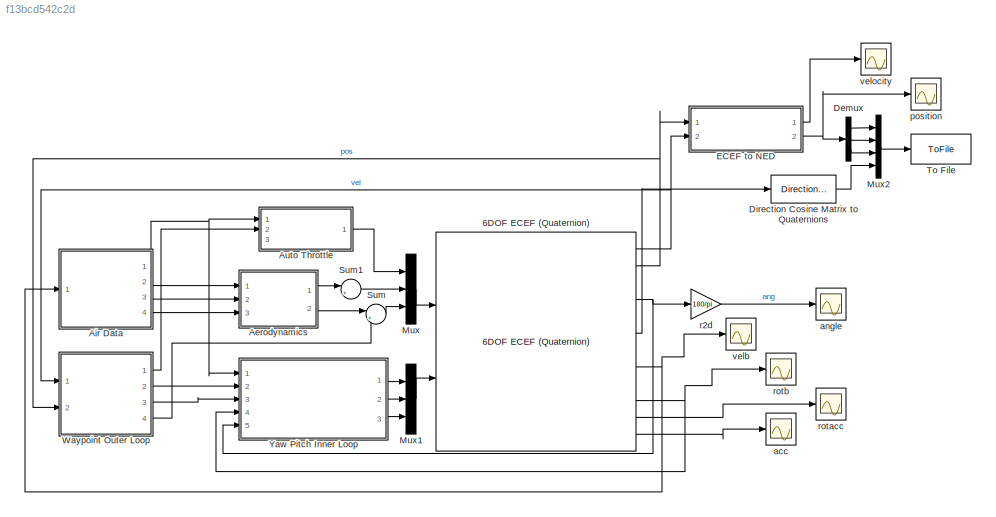
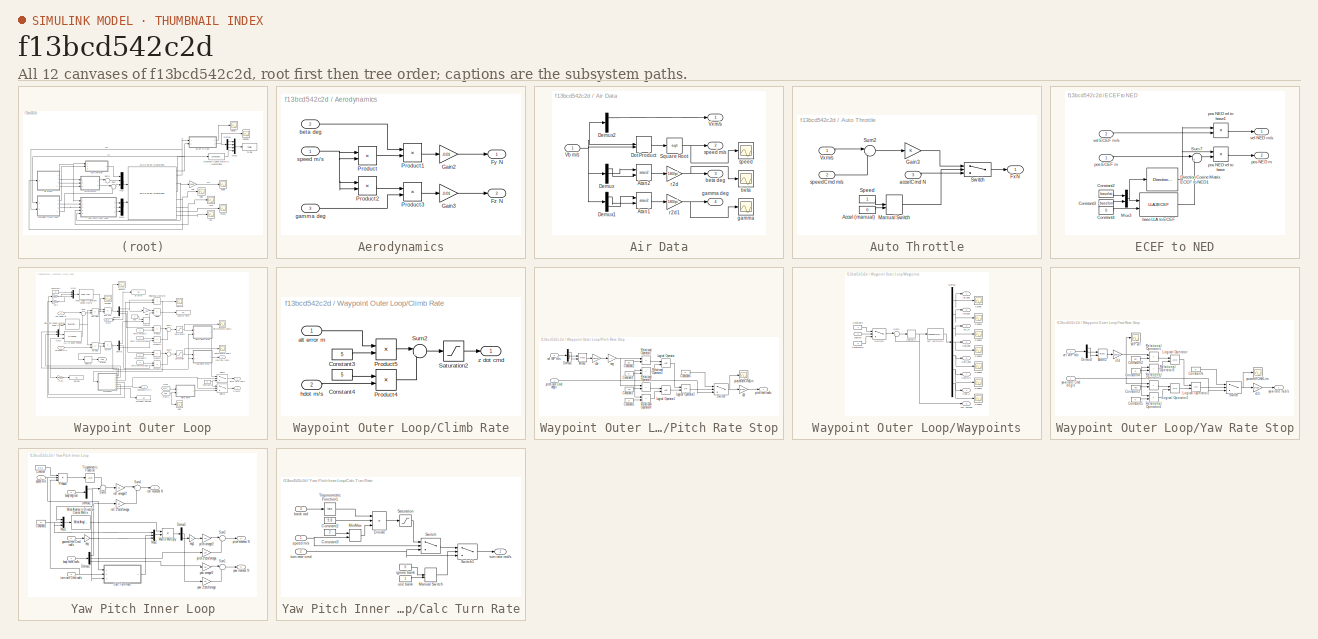
[diagram: thumbnail index - all 12 canvases of the model, root first then tree order]
MODEL slx_f13bcd542c2d
KIND model
CONFIG AbsTol = auto
CONFIG EnableMultiTasking = off
CONFIG FixedStep = 0.001
CONFIG MaxStep = auto
CONFIG MinStep = auto
CONFIG RelTol = 1e-3
CONFIG SampleTimeConstraint = Unconstrained
CONFIG SolverName = FixedStepAuto
CONFIG StartTime = 0.0
CONFIG StopTime = 600
BLOCK [Reference] 6DOF ECEF (Quaternion)  REF=aerolib6dof2/6DOF ECEF (Quaternion)
  Ports = [2, 12]
  SourceBlock = aerolib6dof2/6DOF ECEF (Quaternion)
  SourceProductBaseCode = AE
  SourceType = 6DOF EoM (ECEF)
BLOCK [SubSystem] Aerodynamics
  Ports = [3, 2]
  RequestExecContextInheritance = off
BLOCK [Outport] Aerodynamics/Fy N
BLOCK [Outport] Aerodynamics/Fz N
  Port = 2
BLOCK [Gain] Aerodynamics/Gain2
  Gain = -0.01
BLOCK [Gain] Aerodynamics/Gain3
  Gain = -0.01
BLOCK [Product] Aerodynamics/Product
  Ports = [2, 1]
BLOCK [Product] Aerodynamics/Product1
  Ports = [2, 1]
BLOCK [Product] Aerodynamics/Product2
  Ports = [2, 1]
BLOCK [Product] Aerodynamics/Product3
  Ports = [2, 1]
BLOCK [Inport] Aerodynamics/beta deg
  Port = 2
BLOCK [Inport] Aerodynamics/gamma deg
  Port = 3
BLOCK [Inport] Aerodynamics/speed m//s
BLOCK [SubSystem] Air Data
  NameLocation = top
  Ports = [1, 4]
  RequestExecContextInheritance = off
BLOCK [Trigonometry] Air Data/Atan1
  Operator = atan2
  Ports = [2, 1]
BLOCK [Trigonometry] Air Data/Atan2
  Operator = atan2
  Ports = [2, 1]
BLOCK [Demux] Air Data/Demux
  Outputs = 3
  Ports = [1, 3]
BLOCK [Demux] Air Data/Demux1
  Outputs = 3
  Ports = [1, 3]
BLOCK [Demux] Air Data/Demux2
  Outputs = 3
  Ports = [1, 3]
BLOCK [DotProduct] Air Data/Dot Product
  OutDataTypeStr = Inherit: Inherit via internal rule
BLOCK [Sqrt] Air Data/Square Root
BLOCK [Inport] Air Data/Vb m//s
BLOCK [Outport] Air Data/Vx m//s
BLOCK [Scope] Air Data/beta
  Floating = off
  NumInputPorts = 1
  Ports = [1]
  ScopeSpecificationString = Simulink.scopes.TimeScopeBlockCfg('CurrentConfiguration', extmgr.ConfigurationSet(extmgr.Configuration('Core','General UI',true),extmgr.Configuration('Core','Source UI',true),extmgr.Configuration('Sources','WiredSimulink',true,'DataLoggingVariableName','ScopeData8'),extmgr.Configuration('Visuals','Time Domain',true,'SerializedDisplays',{struct('MinYLimReal','-0.12109','MaxYLimReal','0.03994','YLab...<+1388ch>
BLOCK [Outport] Air Data/beta deg
  Port = 3
BLOCK [Scope] Air Data/gamma
  Floating = off
  NumInputPorts = 1
  Ports = [1]
  ScopeSpecificationString = Simulink.scopes.TimeScopeBlockCfg('CurrentConfiguration', extmgr.ConfigurationSet(extmgr.Configuration('Core','General UI',true),extmgr.Configuration('Core','Source UI',true),extmgr.Configuration('Sources','WiredSimulink',true,'DataLoggingVariableName','ScopeData9'),extmgr.Configuration('Visuals','Time Domain',true,'SerializedDisplays',{struct('MinYLimReal','-1.00000','MaxYLimReal','1.00000','YLab...<+1389ch>
BLOCK [Outport] Air Data/gamma deg
  Port = 4
BLOCK [Gain] Air Data/r2d
  Gain = 180/pi
BLOCK [Gain] Air Data/r2d1
  Gain = 180/pi
BLOCK [Scope] Air Data/speed
  Floating = off
  NumInputPorts = 1
  Ports = [1]
  ScopeSpecificationString = Simulink.scopes.TimeScopeBlockCfg('CurrentConfiguration', extmgr.ConfigurationSet(extmgr.Configuration('Core','General UI',true),extmgr.Configuration('Core','Source UI',true),extmgr.Configuration('Sources','WiredSimulink',true,'DataLoggingVariableName','ScopeData7'),extmgr.Configuration('Visuals','Time Domain',true,'SerializedDisplays',{struct('MinYLimReal','-12.5','MaxYLimReal','112.5','YLabelRea...<+1382ch>
BLOCK [Outport] Air Data/speed m//s
  Port = 2
BLOCK [SubSystem] Auto Throttle
  Ports = [3, 1]
  RequestExecContextInheritance = off
BLOCK [Constant] Auto Throttle/Accel (manual)
  Value = 0
BLOCK [Outport] Auto Throttle/Fx N
BLOCK [Gain] Auto Throttle/Gain3
BLOCK [ManualSwitch] Auto Throttle/Manual Switch
BLOCK [Constant] Auto Throttle/Speed
  NameLocation = top
BLOCK [Sum] Auto Throttle/Sum2
  Inputs = |-+
  Ports = [2, 1]
BLOCK [Switch] Auto Throttle/Switch
  Criteria = u2 > Threshold
  InputSameDT = off
  SaturateOnIntegerOverflow = off
BLOCK [Inport] Auto Throttle/Vx m//s
BLOCK [Inport] Auto Throttle/accelCmd N
  Port = 3
BLOCK [Inport] Auto Throttle/speedCmd m//s
  Port = 2
BLOCK [Demux] Demux
  Outputs = 3
  Ports = [1, 3]
BLOCK [Reference] Direction Cosine Matrix to Quaternions  REF=sharedtransform/Direction Cosine Matrix 
to Quaternions
  Ports = [1, 1]
  SourceBlock = sharedtransform/Direction Cosine Matrix \nto Quaternions
  SourceProductBaseCode = AE,PW,DR,MT,VE
  SourceType = DCM2Quaternion
BLOCK [SubSystem] ECEF to NED
  Ports = [2, 2]
  RequestExecContextInheritance = off
BLOCK [Constant] ECEF to NED/Constant2
  Value = baselat
BLOCK [Constant] ECEF to NED/Constant3
  Value = baselon
BLOCK [Constant] ECEF to NED/Constant4
  Value = 0
BLOCK [Reference] ECEF to NED/Direction Cosine Matrix ECEF to NED1  REF=aerolibtransform2/Direction Cosine Matrix
ECEF to NED
  Ports = [1, 1]
  SourceBlock = aerolibtransform2/Direction Cosine Matrix\nECEF to NED
  SourceProductBaseCode = AE
  SourceType = DCM ECEF to NED
BLOCK [Mux] ECEF to NED/Mux3
  DisplayOption = bar
  Inputs = 2
  Ports = [2, 1]
BLOCK [Sum] ECEF to NED/Sum7
  Inputs = |+-
  Ports = [2, 1]
BLOCK [LLA2ECEF] ECEF to NED/base LLA to ECEF
  Ports = [2, 1]
BLOCK [Inport] ECEF to NED/pos ECEF m
BLOCK [Outport] ECEF to NED/pos NED m
  Port = 2
BLOCK [Product] ECEF to NED/pos NED rel to base
  Multiplication = Matrix(*)
  Ports = [2, 1]
BLOCK [Product] ECEF to NED/pos NED rel to base1
  Multiplication = Matrix(*)
  Ports = [2, 1]
BLOCK [Inport] ECEF to NED/vel ECEF m//s
  Port = 2
BLOCK [Outport] ECEF to NED/vel NED m//s
BLOCK [Mux] Mux
  DisplayOption = bar
  Inputs = 3
  Ports = [3, 1]
BLOCK [Mux] Mux1
  DisplayOption = bar
  Inputs = 3
  Ports = [3, 1]
BLOCK [Mux] Mux2
  DisplayOption = bar
  Ports = [4, 1]
BLOCK [Sum] Sum
  Inputs = |++
  Ports = [2, 1]
BLOCK [Sum] Sum1
  Inputs = |++
  Ports = [2, 1]
BLOCK [ToFile] To File
  Filename = xyzquat.mat
  MatrixName = traj
  Ports = [1]
  SampleTime = 0.1
  SaveFormat = Timeseries
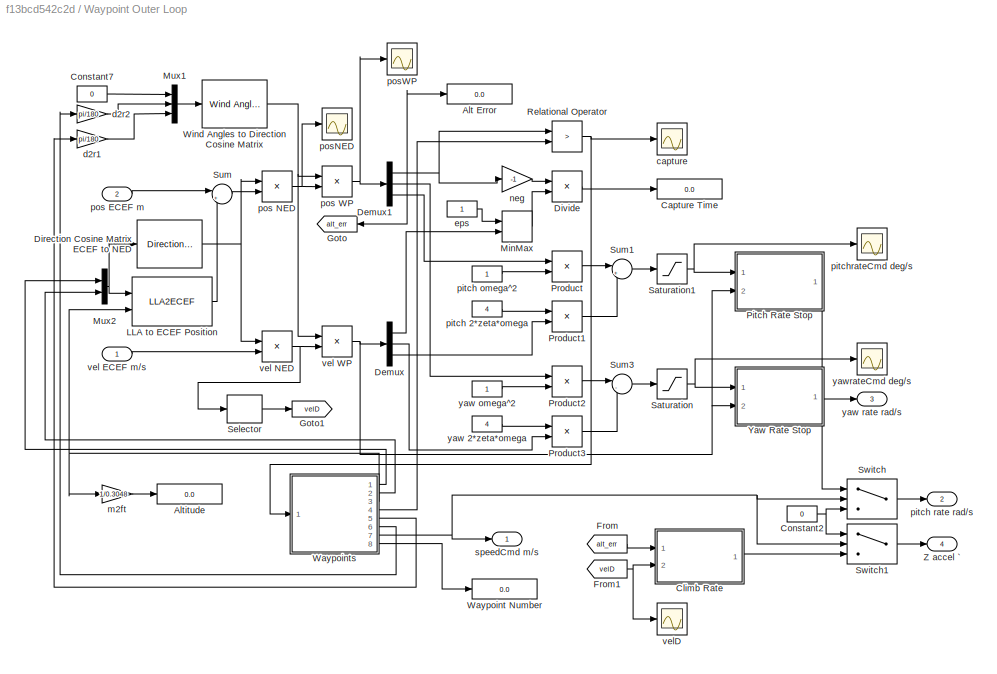
BLOCK [SubSystem] Waypoint Outer Loop
  Ports = [2, 4]
  RequestExecContextInheritance = off
BLOCK [Display] Waypoint Outer Loop/Alt Error
  Decimation = 1
  Ports = [1]
BLOCK [Display] Waypoint Outer Loop/Altitude
  Decimation = 1
  Ports = [1]
BLOCK [Display] Waypoint Outer Loop/Capture Time
  Decimation = 1
  Ports = [1]
BLOCK [SubSystem] Waypoint Outer Loop/Climb Rate
  Ports = [2, 1]
  RequestExecContextInheritance = off
BLOCK [Constant] Waypoint Outer Loop/Climb Rate/Constant3
  Value = 5
BLOCK [Constant] Waypoint Outer Loop/Climb Rate/Constant4
  Value = 5
BLOCK [Product] Waypoint Outer Loop/Climb Rate/Product4
  Ports = [2, 1]
BLOCK [Product] Waypoint Outer Loop/Climb Rate/Product5
  Ports = [2, 1]
BLOCK [Saturate] Waypoint Outer Loop/Climb Rate/Saturation2
  LowerLimit = -50
  UpperLimit = 50
BLOCK [Sum] Waypoint Outer Loop/Climb Rate/Sum2
  Inputs = |--
  Ports = [2, 1]
BLOCK [Inport] Waypoint Outer Loop/Climb Rate/alt error m
BLOCK [Inport] Waypoint Outer Loop/Climb Rate/hdot m//s
  Port = 2
BLOCK [Outport] Waypoint Outer Loop/Climb Rate/z dot cmd
BLOCK [Constant] Waypoint Outer Loop/Constant2
  Value = 0
BLOCK [Constant] Waypoint Outer Loop/Constant7
  Value = 0
BLOCK [Demux] Waypoint Outer Loop/Demux
  Outputs = 3
  Ports = [1, 3]
BLOCK [Demux] Waypoint Outer Loop/Demux1
  Outputs = 3
  Ports = [1, 3]
BLOCK [Reference] Waypoint Outer Loop/Direction Cosine Matrix ECEF to NED  REF=aerolibtransform2/Direction Cosine Matrix
ECEF to NED
  Ports = [1, 1]
  SourceBlock = aerolibtransform2/Direction Cosine Matrix\nECEF to NED
  SourceProductBaseCode = AE
  SourceType = DCM ECEF to NED
BLOCK [Product] Waypoint Outer Loop/Divide
  Inputs = */
  Ports = [2, 1]
BLOCK [From] Waypoint Outer Loop/From
  GotoTag = alt_err
BLOCK [From] Waypoint Outer Loop/From1
  GotoTag = velD
BLOCK [Goto] Waypoint Outer Loop/Goto
  GotoTag = alt_err
BLOCK [Goto] Waypoint Outer Loop/Goto1
  GotoTag = velD
BLOCK [LLA2ECEF] Waypoint Outer Loop/LLA to ECEF Position
  Ports = [2, 1]
BLOCK [MinMax] Waypoint Outer Loop/MinMax
  Function = max
  Inputs = 2
  Ports = [2, 1]
BLOCK [Mux] Waypoint Outer Loop/Mux1
  DisplayOption = bar
  Inputs = 3
  Ports = [3, 1]
BLOCK [Mux] Waypoint Outer Loop/Mux2
  DisplayOption = bar
  Inputs = 2
  Ports = [2, 1]
BLOCK [SubSystem] Waypoint Outer Loop/Pitch Rate Stop
  Ports = [2, 1]
  RequestExecContextInheritance = off
BLOCK [Trigonometry] Waypoint Outer Loop/Pitch Rate Stop/Atan2
  Operator = atan2
  Ports = [2, 1]
BLOCK [Constant] Waypoint Outer Loop/Pitch Rate Stop/Constant2
  Value = 30
BLOCK [Constant] Waypoint Outer Loop/Pitch Rate Stop/Constant3
  Value = -30
BLOCK [Constant] Waypoint Outer Loop/Pitch Rate Stop/Constant4
  Value = 0
BLOCK [Constant] Waypoint Outer Loop/Pitch Rate Stop/Constant5
  Value = 0
BLOCK [Constant] Waypoint Outer Loop/Pitch Rate Stop/Constant6
  Value = 0
BLOCK [Demux] Waypoint Outer Loop/Pitch Rate Stop/Demux2
  Outputs = 3
  Ports = [1, 3]
BLOCK [Logic] Waypoint Outer Loop/Pitch Rate Stop/Logical Operator
  AllPortsSameDT = off
  OutDataTypeStr = boolean
  Ports = [2, 1]
BLOCK [Logic] Waypoint Outer Loop/Pitch Rate Stop/Logical Operator1
  AllPortsSameDT = off
  OutDataTypeStr = boolean
  Ports = [2, 1]
BLOCK [Logic] Waypoint Outer Loop/Pitch Rate Stop/Logical Operator2
  AllPortsSameDT = off
  Operator = OR
  OutDataTypeStr = boolean
  Ports = [2, 1]
BLOCK [RelationalOperator] Waypoint Outer Loop/Pitch Rate Stop/Relational Operator1
  InputSameDT = off
  Operator = >
  OutDataTypeStr = boolean
  Ports = [2, 1]
  RndMeth = Simplest
BLOCK [RelationalOperator] Waypoint Outer Loop/Pitch Rate Stop/Relational Operator2
  InputSameDT = off
  Operator = <
  OutDataTypeStr = boolean
  Ports = [2, 1]
  RndMeth = Simplest
BLOCK [RelationalOperator] Waypoint Outer Loop/Pitch Rate Stop/Relational Operator3
  InputSameDT = off
  Operator = >
  OutDataTypeStr = boolean
  Ports = [2, 1]
  RndMeth = Simplest
BLOCK [RelationalOperator] Waypoint Outer Loop/Pitch Rate Stop/Relational Operator4
  InputSameDT = off
  Operator = <
  OutDataTypeStr = boolean
  Ports = [2, 1]
  RndMeth = Simplest
BLOCK [Switch] Waypoint Outer Loop/Pitch Rate Stop/Switch
  Criteria = u2 ~= 0
  InputSameDT = off
  SaturateOnIntegerOverflow = off
BLOCK [Gain] Waypoint Outer Loop/Pitch Rate Stop/d2r
  Gain = pi/180
BLOCK [Gain] Waypoint Outer Loop/Pitch Rate Stop/neg
  Gain = -1
BLOCK [Scope] Waypoint Outer Loop/Pitch Rate Stop/piatchrateCmdLim
  Floating = off
  NumInputPorts = 1
  Ports = [1]
  ScopeSpecificationString = Simulink.scopes.TimeScopeBlockCfg('CurrentConfiguration', extmgr.ConfigurationSet(extmgr.Configuration('Core','General UI',true),extmgr.Configuration('Core','Source UI',true),extmgr.Configuration('Sources','WiredSimulink',true,'DataLoggingVariableName','ScopeData10'),extmgr.Configuration('Visuals','Time Domain',true,'SerializedDisplays',{struct('MinYLimReal','-12.5','MaxYLimReal','12.5','YLabelRea...<+1375ch>
BLOCK [Inport] Waypoint Outer Loop/Pitch Rate Stop/pitch rate Cmd deg//s
BLOCK [Outport] Waypoint Outer Loop/Pitch Rate Stop/pitch rate rad//s
BLOCK [Gain] Waypoint Outer Loop/Pitch Rate Stop/r2d
  Gain = 180/pi
BLOCK [Inport] Waypoint Outer Loop/Pitch Rate Stop/vel WP m//s
  Port = 2
BLOCK [Product] Waypoint Outer Loop/Product
  Ports = [2, 1]
BLOCK [Product] Waypoint Outer Loop/Product1
  Ports = [2, 1]
BLOCK [Product] Waypoint Outer Loop/Product2
  Ports = [2, 1]
BLOCK [Product] Waypoint Outer Loop/Product3
  Ports = [2, 1]
BLOCK [RelationalOperator] Waypoint Outer Loop/Relational Operator
  InputSameDT = off
  Operator = >
  OutDataTypeStr = boolean
  Ports = [2, 1]
  RndMeth = Simplest
BLOCK [Saturate] Waypoint Outer Loop/Saturation
  LowerLimit = -20
  UpperLimit = 20
BLOCK [Saturate] Waypoint Outer Loop/Saturation1
  LowerLimit = -10
  UpperLimit = 10
BLOCK [Selector] Waypoint Outer Loop/Selector
  IndexOptions = Index vector (dialog)
  Indices = [3]
  InputPortWidth = 3
  OutputSizes = 1
  Ports = [1, 1]
BLOCK [Sum] Waypoint Outer Loop/Sum
  Inputs = |+-
  Ports = [2, 1]
BLOCK [Sum] Waypoint Outer Loop/Sum1
  Inputs = |++
  Ports = [2, 1]
BLOCK [Sum] Waypoint Outer Loop/Sum3
  Inputs = |--
  Ports = [2, 1]
BLOCK [Switch] Waypoint Outer Loop/Switch
  InputSameDT = off
  SaturateOnIntegerOverflow = off
  Threshold = 2
BLOCK [Switch] Waypoint Outer Loop/Switch1
  InputSameDT = off
  SaturateOnIntegerOverflow = off
  Threshold = 2
BLOCK [Display] Waypoint Outer Loop/Waypoint Number
  Decimation = 1
  Ports = [1]
BLOCK [SubSystem] Waypoint Outer Loop/Waypoints
  Ports = [1, 8]
  RequestExecContextInheritance = off
BLOCK [Outport] Waypoint Outer Loop/Waypoints/Capt_s
  Port = 4
BLOCK [Constant] Waypoint Outer Loop/Waypoints/Constant10
  Value = 0
BLOCK [Constant] Waypoint Outer Loop/Waypoints/Constant9
BLOCK [Demux] Waypoint Outer Loop/Waypoints/Demux
  Outputs = 7
  Ports = [1, 7]
BLOCK [Outport] Waypoint Outer Loop/Waypoints/Gam_deg
  Port = 6
BLOCK [Outport] Waypoint Outer Loop/Waypoints/Hdg_deg
  Port = 5
BLOCK [Memory] Waypoint Outer Loop/Waypoints/Memory4
  InitialCondition = 1
BLOCK [Scope] Waypoint Outer Loop/Waypoints/Scope
  Floating = off
  NumInputPorts = 1
  Ports = [1]
  ScopeSpecificationString = Simulink.scopes.TimeScopeBlockCfg('CurrentConfiguration', extmgr.ConfigurationSet(extmgr.Configuration('Core','General UI',true),extmgr.Configuration('Core','Source UI',true),extmgr.Configuration('Sources','WiredSimulink',true,'DataLoggingVariableName','ScopeData1'),extmgr.Configuration('Visuals','Time Domain',true,'SerializedDisplays',{struct('MinYLimReal','37.79503','MaxYLimReal','37.79551','YLa...<+1461ch>
BLOCK [Scope] Waypoint Outer Loop/Waypoints/Scope1
  Floating = off
  NumInputPorts = 1
  Ports = [1]
  ScopeSpecificationString = Simulink.scopes.TimeScopeBlockCfg('CurrentConfiguration', extmgr.ConfigurationSet(extmgr.Configuration('Core','General UI',true),extmgr.Configuration('Core','Source UI',true),extmgr.Configuration('Sources','WiredSimulink',true,'DataLoggingVariableName','ScopeData2'),extmgr.Configuration('Visuals','Time Domain',true,'SerializedDisplays',{struct('MinYLimReal','-1.00000','MaxYLimReal','1.00000','YLab...<+1501ch>
BLOCK [Scope] Waypoint Outer Loop/Waypoints/Scope2
  Floating = off
  NumInputPorts = 1
  Ports = [1]
  ScopeSpecificationString = Simulink.scopes.TimeScopeBlockCfg('CurrentConfiguration', extmgr.ConfigurationSet(extmgr.Configuration('Core','General UI',true),extmgr.Configuration('Core','Source UI',true),extmgr.Configuration('Sources','WiredSimulink',true,'DataLoggingVariableName','ScopeData3'),extmgr.Configuration('Visuals','Time Domain',true,'SerializedDisplays',{struct('MinYLimReal','13.9065','MaxYLimReal','27.2415','YLabe...<+1453ch>
BLOCK [Scope] Waypoint Outer Loop/Waypoints/Scope3
  Floating = off
  NumInputPorts = 1
  Ports = [1]
  ScopeSpecificationString = Simulink.scopes.TimeScopeBlockCfg('CurrentConfiguration', extmgr.ConfigurationSet(extmgr.Configuration('Core','General UI',true),extmgr.Configuration('Core','Source UI',true),extmgr.Configuration('Sources','WiredSimulink',true,'DataLoggingVariableName','ScopeData4'),extmgr.Configuration('Visuals','Time Domain',true,'SerializedDisplays',{struct('MinYLimReal','136.02672','MaxYLimReal','184.88592','Y...<+1469ch>
BLOCK [Scope] Waypoint Outer Loop/Waypoints/Scope4
  Floating = off
  NumInputPorts = 1
  Ports = [1]
  ScopeSpecificationString = Simulink.scopes.TimeScopeBlockCfg('CurrentConfiguration', extmgr.ConfigurationSet(extmgr.Configuration('Core','General UI',true),extmgr.Configuration('Core','Source UI',true),extmgr.Configuration('Sources','WiredSimulink',true,'DataLoggingVariableName','ScopeData5'),extmgr.Configuration('Visuals','Time Domain',true,'SerializedDisplays',{struct('MinYLimReal','0.2','MaxYLimReal','0.4','YLabelReal','...<+1421ch>
BLOCK [Scope] Waypoint Outer Loop/Waypoints/Scope5
  Floating = off
  NumInputPorts = 1
  Ports = [1]
  ScopeSpecificationString = Simulink.scopes.TimeScopeBlockCfg('CurrentConfiguration', extmgr.ConfigurationSet(extmgr.Configuration('Core','General UI',true),extmgr.Configuration('Core','Source UI',true),extmgr.Configuration('Sources','WiredSimulink',true,'DataLoggingVariableName','ScopeData5'),extmgr.Configuration('Visuals','Time Domain',true,'SerializedDisplays',{struct('MinYLimReal','-1.00000','MaxYLimReal','1.00000','YLab...<+1455ch>
BLOCK [Scope] Waypoint Outer Loop/Waypoints/Scope6
  Floating = off
  NumInputPorts = 1
  Ports = [1]
  ScopeSpecificationString = Simulink.scopes.TimeScopeBlockCfg('CurrentConfiguration', extmgr.ConfigurationSet(extmgr.Configuration('Core','General UI',true),extmgr.Configuration('Core','Source UI',true),extmgr.Configuration('Sources','WiredSimulink',true,'DataLoggingVariableName','ScopeData1'),extmgr.Configuration('Visuals','Time Domain',true,'SerializedDisplays',{struct('MinYLimReal','0.2','MaxYLimReal','0.4','YLabelReal','...<+1421ch>
BLOCK [Outport] Waypoint Outer Loop/Waypoints/Spd_m//s
  Port = 7
BLOCK [Sum] Waypoint Outer Loop/Waypoints/Sum1
  Inputs = |++
  Ports = [2, 1]
BLOCK [Switch] Waypoint Outer Loop/Waypoints/Switch4
  Criteria = u2 > Threshold
  InputSameDT = off
  SaturateOnIntegerOverflow = off
BLOCK [LookupNDDirect] Waypoint Outer Loop/Waypoints/WP NEDHGV
  InputsSelectThisObjectFromTable = Vector
  Ports = [1, 1]
  Table = uam
BLOCK [Outport] Waypoint Outer Loop/Waypoints/WP number
  Port = 8
BLOCK [Outport] Waypoint Outer Loop/Waypoints/alt_m
  Port = 3
BLOCK [Inport] Waypoint Outer Loop/Waypoints/capture
BLOCK [Outport] Waypoint Outer Loop/Waypoints/lat_deg
BLOCK [Outport] Waypoint Outer Loop/Waypoints/lon_deg
  Port = 2
BLOCK [Reference] Waypoint Outer Loop/Wind Angles to Direction Cosine Matrix  REF=aerolibtransform2/Wind Angles to 
Direction Cosine Matrix
  Ports = [1, 1]
  SourceBlock = aerolibtransform2/Wind Angles to \nDirection Cosine Matrix
  SourceProductBaseCode = AE
  SourceType = Wind2DCM
BLOCK [SubSystem] Waypoint Outer Loop/Yaw Rate Stop
  Ports = [2, 1]
  RequestExecContextInheritance = off
BLOCK [Trigonometry] Waypoint Outer Loop/Yaw Rate Stop/Atan2
  Operator = atan2
  Ports = [2, 1]
BLOCK [Constant] Waypoint Outer Loop/Yaw Rate Stop/Constant2
  Value = 60
BLOCK [Constant] Waypoint Outer Loop/Yaw Rate Stop/Constant3
  Value = -60
BLOCK [Constant] Waypoint Outer Loop/Yaw Rate Stop/Constant4
  Value = 0
BLOCK [Constant] Waypoint Outer Loop/Yaw Rate Stop/Constant5
  Value = 0
BLOCK [Constant] Waypoint Outer Loop/Yaw Rate Stop/Constant6
  Value = 0
BLOCK [Demux] Waypoint Outer Loop/Yaw Rate Stop/Demux2
  Outputs = 3
  Ports = [1, 3]
BLOCK [Logic] Waypoint Outer Loop/Yaw Rate Stop/Logical Operator
  AllPortsSameDT = off
  OutDataTypeStr = boolean
  Ports = [2, 1]
BLOCK [Logic] Waypoint Outer Loop/Yaw Rate Stop/Logical Operator1
  AllPortsSameDT = off
  OutDataTypeStr = boolean
  Ports = [2, 1]
BLOCK [Logic] Waypoint Outer Loop/Yaw Rate Stop/Logical Operator2
  AllPortsSameDT = off
  Operator = OR
  OutDataTypeStr = boolean
  Ports = [2, 1]
BLOCK [RelationalOperator] Waypoint Outer Loop/Yaw Rate Stop/Relational Operator1
  InputSameDT = off
  Operator = >
  OutDataTypeStr = boolean
  Ports = [2, 1]
  RndMeth = Simplest
BLOCK [RelationalOperator] Waypoint Outer Loop/Yaw Rate Stop/Relational Operator2
  InputSameDT = off
  Operator = <
  OutDataTypeStr = boolean
  Ports = [2, 1]
  RndMeth = Simplest
BLOCK [RelationalOperator] Waypoint Outer Loop/Yaw Rate Stop/Relational Operator3
  InputSameDT = off
  Operator = >
  OutDataTypeStr = boolean
  Ports = [2, 1]
  RndMeth = Simplest
BLOCK [RelationalOperator] Waypoint Outer Loop/Yaw Rate Stop/Relational Operator4
  InputSameDT = off
  Operator = <
  OutDataTypeStr = boolean
  Ports = [2, 1]
  RndMeth = Simplest
BLOCK [Switch] Waypoint Outer Loop/Yaw Rate Stop/Switch
  Criteria = u2 ~= 0
  InputSameDT = off
  SaturateOnIntegerOverflow = off
BLOCK [Scope] Waypoint Outer Loop/Yaw Rate Stop/WP vel
  Floating = off
  NumInputPorts = 1
  Ports = [1]
  ScopeSpecificationString = Simulink.scopes.TimeScopeBlockCfg('CurrentConfiguration', extmgr.ConfigurationSet(extmgr.Configuration('Core','General UI',true),extmgr.Configuration('Core','Source UI',true),extmgr.Configuration('Sources','WiredSimulink',true,'DataLoggingVariableName','ScopeData19'),extmgr.Configuration('Visuals','Time Domain',true,'SerializedDisplays',{struct('MinYLimReal','-104.68143','MaxYLimReal','42.13284','...<+1403ch>
BLOCK [Gain] Waypoint Outer Loop/Yaw Rate Stop/d2r
  Gain = pi/180
BLOCK [Gain] Waypoint Outer Loop/Yaw Rate Stop/r2d
  Gain = 180/pi
BLOCK [Inport] Waypoint Outer Loop/Yaw Rate Stop/vel WP m//s
  Port = 2
BLOCK [Inport] Waypoint Outer Loop/Yaw Rate Stop/yaw rate Cmd deg//s
BLOCK [Outport] Waypoint Outer Loop/Yaw Rate Stop/yaw rate rad//s
BLOCK [Scope] Waypoint Outer Loop/Yaw Rate Stop/yawrateCmdLim
  Floating = off
  NumInputPorts = 1
  Ports = [1]
  ScopeSpecificationString = Simulink.scopes.TimeScopeBlockCfg('CurrentConfiguration', extmgr.ConfigurationSet(extmgr.Configuration('Core','General UI',true),extmgr.Configuration('Core','Source UI',true),extmgr.Configuration('Sources','WiredSimulink',true,'DataLoggingVariableName','ScopeData10'),extmgr.Configuration('Visuals','Time Domain',true,'SerializedDisplays',{struct('MinYLimReal','-23.28168','MaxYLimReal','69.25352','Y...<+1400ch>
BLOCK [Outport] Waypoint Outer Loop/Z accel `
  Port = 4
BLOCK [Scope] Waypoint Outer Loop/capture
  Floating = off
  NumInputPorts = 1
  Ports = [1]
  ScopeSpecificationString = Simulink.scopes.TimeScopeBlockCfg('CurrentConfiguration', extmgr.ConfigurationSet(extmgr.Configuration('Core','General UI',true),extmgr.Configuration('Core','Source UI',true),extmgr.Configuration('Sources','WiredSimulink',true,'DataLoggingVariableName','ScopeData18'),extmgr.Configuration('Visuals','Time Domain',true,'SerializedDisplays',{struct('MinYLimReal','-0.125','MaxYLimReal','1.125','YLabelR...<+1467ch>
BLOCK [Gain] Waypoint Outer Loop/d2r1
  Gain = pi/180
BLOCK [Gain] Waypoint Outer Loop/d2r2
  Gain = pi/180
BLOCK [Constant] Waypoint Outer Loop/eps
BLOCK [Gain] Waypoint Outer Loop/m2ft
  Gain = 1/0.3048
BLOCK [Gain] Waypoint Outer Loop/neg
  Gain = -1
BLOCK [Constant] Waypoint Outer Loop/pitch 2*zeta*omega
  Value = 4
BLOCK [Constant] Waypoint Outer Loop/pitch omega^2
BLOCK [Outport] Waypoint Outer Loop/pitch rate rad//s
  Port = 2
BLOCK [Scope] Waypoint Outer Loop/pitchrateCmd deg//s
  Floating = off
  NumInputPorts = 1
  Ports = [1]
  ScopeSpecificationString = Simulink.scopes.TimeScopeBlockCfg('CurrentConfiguration', extmgr.ConfigurationSet(extmgr.Configuration('Core','General UI',true),extmgr.Configuration('Core','Source UI',true),extmgr.Configuration('Sources','WiredSimulink',true,'DataLoggingVariableName','ScopeData12'),extmgr.Configuration('Visuals','Time Domain',true,'SerializedDisplays',{struct('MinYLimReal','-12.5','MaxYLimReal','12.5','YLabelRea...<+1382ch>
BLOCK [Inport] Waypoint Outer Loop/pos ECEF m
  Port = 2
BLOCK [Product] Waypoint Outer Loop/pos NED
  Multiplication = Matrix(*)
  Ports = [2, 1]
BLOCK [Product] Waypoint Outer Loop/pos WP
  Multiplication = Matrix(*)
  Ports = [2, 1]
BLOCK [Scope] Waypoint Outer Loop/posNED
  Floating = off
  NumInputPorts = 1
  Ports = [1]
  ScopeSpecificationString = Simulink.scopes.TimeScopeBlockCfg('CurrentConfiguration', extmgr.ConfigurationSet(extmgr.Configuration('Core','General UI',true),extmgr.Configuration('Core','Source UI',true),extmgr.Configuration('Sources','WiredSimulink',true,'DataLoggingVariableName','ScopeData2'),extmgr.Configuration('Visuals','Time Domain',true,'SerializedDisplays',{struct('MinYLimReal','-11.25008','MaxYLimReal','1.25068','YLa...<+1493ch>
BLOCK [Scope] Waypoint Outer Loop/posWP
  Floating = off
  NumInputPorts = 1
  Ports = [1]
  ScopeSpecificationString = Simulink.scopes.TimeScopeBlockCfg('CurrentConfiguration', extmgr.ConfigurationSet(extmgr.Configuration('Core','General UI',true),extmgr.Configuration('Core','Source UI',true),extmgr.Configuration('Sources','WiredSimulink',true,'DataLoggingVariableName','ScopeData3'),extmgr.Configuration('Visuals','Time Domain',true,'SerializedDisplays',{struct('MinYLimReal','-2.3695','MaxYLimReal','11.37439','YLab...<+1489ch>
BLOCK [Outport] Waypoint Outer Loop/speedCmd m//s
BLOCK [Inport] Waypoint Outer Loop/vel ECEF m//s
BLOCK [Product] Waypoint Outer Loop/vel NED
  Multiplication = Matrix(*)
  Ports = [2, 1]
BLOCK [Product] Waypoint Outer Loop/vel WP
  Multiplication = Matrix(*)
  Ports = [2, 1]
BLOCK [Scope] Waypoint Outer Loop/velD
  Floating = off
  NumInputPorts = 1
  Ports = [1]
  ScopeSpecificationString = Simulink.scopes.TimeScopeBlockCfg('CurrentConfiguration', extmgr.ConfigurationSet(extmgr.Configuration('Core','General UI',true),extmgr.Configuration('Core','Source UI',true),extmgr.Configuration('Sources','WiredSimulink',true,'DataLoggingVariableName','ScopeData1'),extmgr.Configuration('Visuals','Time Domain',true,'SerializedDisplays',{struct('MinYLimReal','-39.06834','MaxYLimReal','4.34093','YLa...<+1471ch>
BLOCK [Constant] Waypoint Outer Loop/yaw 2*zeta*omega
  Value = 4
BLOCK [Constant] Waypoint Outer Loop/yaw omega^2
BLOCK [Outport] Waypoint Outer Loop/yaw rate rad//s
  Port = 3
BLOCK [Scope] Waypoint Outer Loop/yawrateCmd deg//s
  Floating = off
  NumInputPorts = 1
  Ports = [1]
  ScopeSpecificationString = Simulink.scopes.TimeScopeBlockCfg('CurrentConfiguration', extmgr.ConfigurationSet(extmgr.Configuration('Core','General UI',true),extmgr.Configuration('Core','Source UI',true),extmgr.Configuration('Sources','WiredSimulink',true,'DataLoggingVariableName','ScopeData11'),extmgr.Configuration('Visuals','Time Domain',true,'SerializedDisplays',{struct('MinYLimReal','-25.00000','MaxYLimReal','25.00000','Y...<+1405ch>
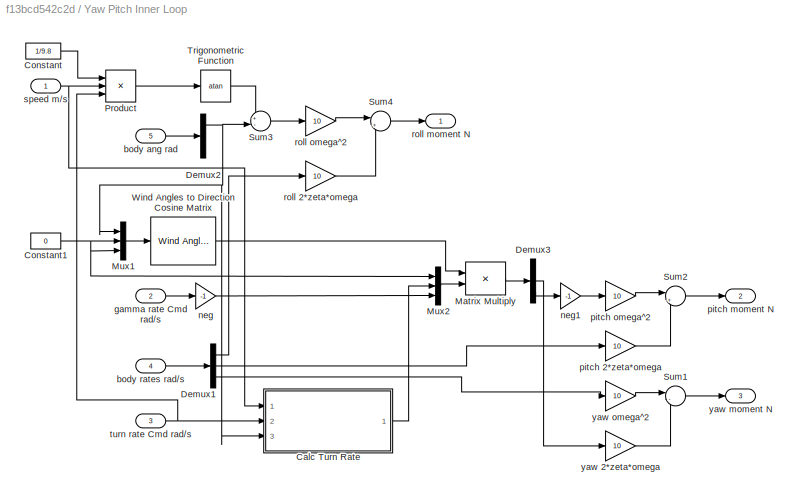
BLOCK [SubSystem] Yaw Pitch Inner Loop
  Ports = [5, 3]
  RequestExecContextInheritance = off
BLOCK [SubSystem] Yaw Pitch Inner Loop/Calc Turn Rate
  Ports = [3, 1]
  RequestExecContextInheritance = off
BLOCK [Constant] Yaw Pitch Inner Loop/Calc Turn Rate/Constant2
  Value = 9.8
BLOCK [Constant] Yaw Pitch Inner Loop/Calc Turn Rate/Constant3
  Value = 2
BLOCK [Product] Yaw Pitch Inner Loop/Calc Turn Rate/Divide
  Inputs = **/
  Ports = [3, 1]
BLOCK [ManualSwitch] Yaw Pitch Inner Loop/Calc Turn Rate/Manual Switch
BLOCK [MinMax] Yaw Pitch Inner Loop/Calc Turn Rate/MinMax
  Function = max
  Inputs = 2
  Ports = [2, 1]
BLOCK [Saturate] Yaw Pitch Inner Loop/Calc Turn Rate/Saturation
  LowerLimit = -1
  UpperLimit = 1
BLOCK [Switch] Yaw Pitch Inner Loop/Calc Turn Rate/Switch
  Criteria = u2 > Threshold
  InputSameDT = off
  SaturateOnIntegerOverflow = off
  Threshold = 2
BLOCK [Switch] Yaw Pitch Inner Loop/Calc Turn Rate/Switch1
  Criteria = u2 > Threshold
  InputSameDT = off
  SaturateOnIntegerOverflow = off
BLOCK [Trigonometry] Yaw Pitch Inner Loop/Calc Turn Rate/Trigonometric Function1
  Operator = tan
  Ports = [1, 1]
BLOCK [Inport] Yaw Pitch Inner Loop/Calc Turn Rate/bank rad
  Port = 3
BLOCK [Constant] Yaw Pitch Inner Loop/Calc Turn Rate/ignore bank
  Value = 0
BLOCK [Inport] Yaw Pitch Inner Loop/Calc Turn Rate/speed m//s
BLOCK [Inport] Yaw Pitch Inner Loop/Calc Turn Rate/turn rate cmd
  Port = 2
BLOCK [Outport] Yaw Pitch Inner Loop/Calc Turn Rate/turn rate rad//s
BLOCK [Constant] Yaw Pitch Inner Loop/Calc Turn Rate/use bank
BLOCK [Constant] Yaw Pitch Inner Loop/Constant
  Value = 1/9.8
BLOCK [Constant] Yaw Pitch Inner Loop/Constant1
  Value = 0
BLOCK [Demux] Yaw Pitch Inner Loop/Demux1
  Outputs = 3
  Ports = [1, 3]
BLOCK [Demux] Yaw Pitch Inner Loop/Demux2
  Outputs = 3
  Ports = [1, 3]
BLOCK [Demux] Yaw Pitch Inner Loop/Demux3
  Outputs = 3
  Ports = [1, 3]
BLOCK [Product] Yaw Pitch Inner Loop/Matrix Multiply
  Multiplication = Matrix(*)
  Ports = [2, 1]
BLOCK [Mux] Yaw Pitch Inner Loop/Mux1
  DisplayOption = bar
  Inputs = 3
  Ports = [3, 1]
BLOCK [Mux] Yaw Pitch Inner Loop/Mux2
  DisplayOption = bar
  Inputs = 3
  Ports = [3, 1]
BLOCK [Product] Yaw Pitch Inner Loop/Product
  Inputs = 3
  Ports = [3, 1]
BLOCK [Sum] Yaw Pitch Inner Loop/Sum1
  Inputs = |-+
  Ports = [2, 1]
BLOCK [Sum] Yaw Pitch Inner Loop/Sum2
  Inputs = |+-
  Ports = [2, 1]
BLOCK [Sum] Yaw Pitch Inner Loop/Sum3
  Inputs = +-|
  Ports = [2, 1]
BLOCK [Sum] Yaw Pitch Inner Loop/Sum4
  Inputs = |+-
  Ports = [2, 1]
BLOCK [Trigonometry] Yaw Pitch Inner Loop/Trigonometric Function
  Operator = atan
  Ports = [1, 1]
BLOCK [Reference] Yaw Pitch Inner Loop/Wind Angles to Direction Cosine Matrix  REF=aerolibtransform2/Wind Angles to 
Direction Cosine Matrix
  Ports = [1, 1]
  SourceBlock = aerolibtransform2/Wind Angles to \nDirection Cosine Matrix
  SourceProductBaseCode = AE
  SourceType = Wind2DCM
BLOCK [Inport] Yaw Pitch Inner Loop/body ang rad
  Port = 5
BLOCK [Inport] Yaw Pitch Inner Loop/body rates rad//s
  Port = 4
BLOCK [Inport] Yaw Pitch Inner Loop/gamma rate Cmd rad//s
  Port = 2
BLOCK [Gain] Yaw Pitch Inner Loop/neg
  Gain = -1
BLOCK [Gain] Yaw Pitch Inner Loop/neg1
  Gain = -1
BLOCK [Gain] Yaw Pitch Inner Loop/pitch 2*zeta*omega
  Gain = 10
BLOCK [Outport] Yaw Pitch Inner Loop/pitch moment N
  Port = 2
BLOCK [Gain] Yaw Pitch Inner Loop/pitch omega^2
  Gain = 10
BLOCK [Gain] Yaw Pitch Inner Loop/roll 2*zeta*omega
  Gain = 10
BLOCK [Outport] Yaw Pitch Inner Loop/roll moment N
BLOCK [Gain] Yaw Pitch Inner Loop/roll omega^2
  Gain = 10
BLOCK [Inport] Yaw Pitch Inner Loop/speed m//s
BLOCK [Inport] Yaw Pitch Inner Loop/turn rate Cmd rad//s
  Port = 3
BLOCK [Gain] Yaw Pitch Inner Loop/yaw 2*zeta*omega
  Gain = 10
BLOCK [Outport] Yaw Pitch Inner Loop/yaw moment N
  Port = 3
BLOCK [Gain] Yaw Pitch Inner Loop/yaw omega^2
  Gain = 10
BLOCK [Scope] acc
  Floating = off
  NumInputPorts = 1
  Ports = [1]
  ScopeSpecificationString = Simulink.scopes.TimeScopeBlockCfg('CurrentConfiguration', extmgr.ConfigurationSet(extmgr.Configuration('Core','General UI',true),extmgr.Configuration('Core','Source UI',true),extmgr.Configuration('Sources','WiredSimulink',true,'DataLoggingVariableName','ScopeData3'),extmgr.Configuration('Visuals','Time Domain',true,'SerializedDisplays',{struct('MinYLimReal','-14.41241','MaxYLimReal','112.71249','Y...<+1469ch>
BLOCK [Scope] angle
  Floating = off
  NumInputPorts = 1
  Ports = [1]
  ScopeSpecificationString = Simulink.scopes.TimeScopeBlockCfg('CurrentConfiguration', extmgr.ConfigurationSet(extmgr.Configuration('Core','General UI',true),extmgr.Configuration('Core','Source UI',true),extmgr.Configuration('Sources','WiredSimulink',true,'DataLoggingVariableName','ScopeData2'),extmgr.Configuration('Visuals','Time Domain',true,'SerializedDisplays',{struct('MinYLimReal','-143.91846','MaxYLimReal','48.69102','Y...<+1461ch>
BLOCK [Scope] position
  Floating = off
  NumInputPorts = 1
  Ports = [1]
  ScopeSpecificationString = Simulink.scopes.TimeScopeBlockCfg('CurrentConfiguration', extmgr.ConfigurationSet(extmgr.Configuration('Core','General UI',true),extmgr.Configuration('Core','Source UI',true),extmgr.Configuration('Sources','WiredSimulink',true,'DataLoggingVariableName','ScopeData1'),extmgr.Configuration('Visuals','Time Domain',true,'SerializedDisplays',{struct('MinYLimReal','-259.2753','MaxYLimReal','14.25664','YL...<+1514ch>
BLOCK [Gain] r2d
  Gain = 180/pi
BLOCK [Scope] rotacc
  Floating = off
  NumInputPorts = 1
  Ports = [1]
  ScopeSpecificationString = Simulink.scopes.TimeScopeBlockCfg('CurrentConfiguration', extmgr.ConfigurationSet(extmgr.Configuration('Core','General UI',true),extmgr.Configuration('Core','Source UI',true),extmgr.Configuration('Sources','WiredSimulink',true,'DataLoggingVariableName','ScopeData6'),extmgr.Configuration('Visuals','Time Domain',true,'SerializedDisplays',{struct('MinYLimReal','-4.49976','MaxYLimReal','12.15638','YLa...<+1532ch>
BLOCK [Scope] rotb
  Floating = off
  NumInputPorts = 1
  Ports = [1]
  ScopeSpecificationString = Simulink.scopes.TimeScopeBlockCfg('CurrentConfiguration', extmgr.ConfigurationSet(extmgr.Configuration('Core','General UI',true),extmgr.Configuration('Core','Source UI',true),extmgr.Configuration('Sources','WiredSimulink',true,'DataLoggingVariableName','ScopeData5'),extmgr.Configuration('Visuals','Time Domain',true,'SerializedDisplays',{struct('MinYLimReal','-0.39871','MaxYLimReal','1.20785','YLab...<+1528ch>
BLOCK [Scope] velb
  Floating = off
  NumInputPorts = 1
  Ports = [1]
  ScopeSpecificationString = Simulink.scopes.TimeScopeBlockCfg('CurrentConfiguration', extmgr.ConfigurationSet(extmgr.Configuration('Core','General UI',true),extmgr.Configuration('Core','Source UI',true),extmgr.Configuration('Sources','WiredSimulink',true,'DataLoggingVariableName','ScopeData4'),extmgr.Configuration('Visuals','Time Domain',true,'SerializedDisplays',{struct('MinYLimReal','-5.44504','MaxYLimReal','0.9382','YLabe...<+1559ch>
BLOCK [Scope] velocity
  Floating = off
  NumInputPorts = 1
  Ports = [1]
  ScopeSpecificationString = Simulink.scopes.TimeScopeBlockCfg('CurrentConfiguration', extmgr.ConfigurationSet(extmgr.Configuration('Core','General UI',true),extmgr.Configuration('Core','Source UI',true),extmgr.Configuration('Sources','WiredSimulink',true),extmgr.Configuration('Visuals','Time Domain',true,'SerializedDisplays',{struct('MinYLimReal','-82.31077','MaxYLimReal','72.08477','YLabelReal','','MinYLimMag','0.00000','Ma...<+1474ch>
NET 6DOF ECEF (Quaternion):1 -> ECEF to NED:2, Waypoint Outer Loop:1
NET 6DOF ECEF (Quaternion):10 -> Yaw Pitch Inner Loop:4, rotb:1
LINE 6DOF ECEF (Quaternion):11 -> rotacc:1
LINE 6DOF ECEF (Quaternion):12 -> acc:1
NET 6DOF ECEF (Quaternion):2 -> ECEF to NED:1, Waypoint Outer Loop:2
NET 6DOF ECEF (Quaternion):4 -> Yaw Pitch Inner Loop:5, r2d:1
LINE 6DOF ECEF (Quaternion):6 -> Direction Cosine Matrix to Quaternions:1
NET 6DOF ECEF (Quaternion):8 -> Air Data:1, velb:1
LINE Aerodynamics/Gain2:1 -> Aerodynamics/Fy N:1
LINE Aerodynamics/Gain3:1 -> Aerodynamics/Fz N:1
LINE Aerodynamics/Product1:1 -> Aerodynamics/Gain2:1
LINE Aerodynamics/Product2:1 -> Aerodynamics/Product3:1
LINE Aerodynamics/Product3:1 -> Aerodynamics/Gain3:1
LINE Aerodynamics/Product:1 -> Aerodynamics/Product1:2
LINE Aerodynamics/beta deg:1 -> Aerodynamics/Product1:1
LINE Aerodynamics/gamma deg:1 -> Aerodynamics/Product3:2
NET Aerodynamics/speed m//s:1 -> Aerodynamics/Product2:1, Aerodynamics/Product2:2, Aerodynamics/Product:1, Aerodynamics/Product:2
LINE Aerodynamics:1 -> Sum1:1
LINE Aerodynamics:2 -> Sum:1
LINE Air Data/Atan1:1 -> Air Data/r2d1:1
LINE Air Data/Atan2:1 -> Air Data/r2d:1
LINE Air Data/Demux1:1 -> Air Data/Atan1:2
LINE Air Data/Demux1:3 -> Air Data/Atan1:1
LINE Air Data/Demux2:1 -> Air Data/Vx m//s:1
LINE Air Data/Demux:1 -> Air Data/Atan2:2
LINE Air Data/Demux:2 -> Air Data/Atan2:1
LINE Air Data/Dot Product:1 -> Air Data/Square Root:1
NET Air Data/Square Root:1 -> Air Data/speed m//s:1, Air Data/speed:1
NET Air Data/Vb m//s:1 -> Air Data/Demux1:1, Air Data/Demux2:1, Air Data/Demux:1, Air Data/Dot Product:1, Air Data/Dot Product:2
NET Air Data/r2d1:1 -> Air Data/gamma deg:1, Air Data/gamma:1
NET Air Data/r2d:1 -> Air Data/beta deg:1, Air Data/beta:1
NET Air Data:1 -> Auto Throttle:1, Yaw Pitch Inner Loop:1
LINE Air Data:2 -> Aerodynamics:1
LINE Air Data:3 -> Aerodynamics:2
LINE Air Data:4 -> Aerodynamics:3
LINE Auto Throttle/Accel (manual):1 -> Auto Throttle/Manual Switch:2
LINE Auto Throttle/Gain3:1 -> Auto Throttle/Switch:1
LINE Auto Throttle/Manual Switch:1 -> Auto Throttle/Switch:2
LINE Auto Throttle/Speed:1 -> Auto Throttle/Manual Switch:1
LINE Auto Throttle/Sum2:1 -> Auto Throttle/Gain3:1
LINE Auto Throttle/Switch:1 -> Auto Throttle/Fx N:1
LINE Auto Throttle/Vx m//s:1 -> Auto Throttle/Sum2:1
LINE Auto Throttle/accelCmd N:1 -> Auto Throttle/Switch:3
LINE Auto Throttle/speedCmd m//s:1 -> Auto Throttle/Sum2:2
LINE Auto Throttle:1 -> Mux:1
LINE Demux:1 -> Mux2:1
LINE Demux:2 -> Mux2:2
LINE Demux:3 -> Mux2:3
LINE Direction Cosine Matrix to Quaternions:1 -> Mux2:4
LINE ECEF to NED/Constant2:1 -> ECEF to NED/Mux3:1
LINE ECEF to NED/Constant3:1 -> ECEF to NED/Mux3:2
LINE ECEF to NED/Constant4:1 -> ECEF to NED/base LLA to ECEF:2
NET ECEF to NED/Direction Cosine Matrix ECEF to NED1:1 -> ECEF to NED/pos NED rel to base1:1, ECEF to NED/pos NED rel to base:1
NET ECEF to NED/Mux3:1 -> ECEF to NED/Direction Cosine Matrix ECEF to NED1:1, ECEF to NED/base LLA to ECEF:1
LINE ECEF to NED/Sum7:1 -> ECEF to NED/pos NED rel to base:2
LINE ECEF to NED/base LLA to ECEF:1 -> ECEF to NED/Sum7:2
LINE ECEF to NED/pos ECEF m:1 -> ECEF to NED/Sum7:1
LINE ECEF to NED/pos NED rel to base1:1 -> ECEF to NED/vel NED m//s:1
LINE ECEF to NED/pos NED rel to base:1 -> ECEF to NED/pos NED m:1
LINE ECEF to NED/vel ECEF m//s:1 -> ECEF to NED/pos NED rel to base1:2
LINE ECEF to NED:1 -> velocity:1
NET ECEF to NED:2 -> Demux:1, position:1
LINE Mux1:1 -> 6DOF ECEF (Quaternion):2
LINE Mux2:1 -> To File:1
LINE Mux:1 -> 6DOF ECEF (Quaternion):1
LINE Sum1:1 -> Mux:2
LINE Sum:1 -> Mux:3
LINE Waypoint Outer Loop/Climb Rate/Constant3:1 -> Waypoint Outer Loop/Climb Rate/Product5:2
LINE Waypoint Outer Loop/Climb Rate/Constant4:1 -> Waypoint Outer Loop/Climb Rate/Product4:1
LINE Waypoint Outer Loop/Climb Rate/Product4:1 -> Waypoint Outer Loop/Climb Rate/Sum2:2
LINE Waypoint Outer Loop/Climb Rate/Product5:1 -> Waypoint Outer Loop/Climb Rate/Sum2:1
LINE Waypoint Outer Loop/Climb Rate/Saturation2:1 -> Waypoint Outer Loop/Climb Rate/z dot cmd:1
LINE Waypoint Outer Loop/Climb Rate/Sum2:1 -> Waypoint Outer Loop/Climb Rate/Saturation2:1
LINE Waypoint Outer Loop/Climb Rate/alt error m:1 -> Waypoint Outer Loop/Climb Rate/Product5:1
LINE Waypoint Outer Loop/Climb Rate/hdot m//s:1 -> Waypoint Outer Loop/Climb Rate/Product4:2
LINE Waypoint Outer Loop/Climb Rate:1 -> Waypoint Outer Loop/Switch1:3
NET Waypoint Outer Loop/Constant2:1 -> Waypoint Outer Loop/Switch1:1, Waypoint Outer Loop/Switch:3
LINE Waypoint Outer Loop/Constant7:1 -> Waypoint Outer Loop/Mux1:1
NET Waypoint Outer Loop/Demux1:1 -> Waypoint Outer Loop/Relational Operator:1, Waypoint Outer Loop/neg:1
LINE Waypoint Outer Loop/Demux1:2 -> Waypoint Outer Loop/Product2:1
NET Waypoint Outer Loop/Demux1:3 -> Waypoint Outer Loop/Alt Error:1, Waypoint Outer Loop/Goto:1, Waypoint Outer Loop/Product:1
LINE Waypoint Outer Loop/Demux:1 -> Waypoint Outer Loop/MinMax:2
LINE Waypoint Outer Loop/Demux:2 -> Waypoint Outer Loop/Product3:2
LINE Waypoint Outer Loop/Demux:3 -> Waypoint Outer Loop/Product1:2
NET Waypoint Outer Loop/Direction Cosine Matrix ECEF to NED:1 -> Waypoint Outer Loop/pos NED:1, Waypoint Outer Loop/vel NED:1
LINE Waypoint Outer Loop/Divide:1 -> Waypoint Outer Loop/Capture Time:1
NET Waypoint Outer Loop/From1:1 -> Waypoint Outer Loop/Climb Rate:2, Waypoint Outer Loop/velD:1
LINE Waypoint Outer Loop/From:1 -> Waypoint Outer Loop/Climb Rate:1
LINE Waypoint Outer Loop/LLA to ECEF Position:1 -> Waypoint Outer Loop/Sum:2
LINE Waypoint Outer Loop/MinMax:1 -> Waypoint Outer Loop/Divide:2
LINE Waypoint Outer Loop/Mux1:1 -> Waypoint Outer Loop/Wind Angles to Direction Cosine Matrix:1
NET Waypoint Outer Loop/Mux2:1 -> Waypoint Outer Loop/Direction Cosine Matrix ECEF to NED:1, Waypoint Outer Loop/LLA to ECEF Position:1
LINE Waypoint Outer Loop/Pitch Rate Stop/Atan2:1 -> Waypoint Outer Loop/Pitch Rate Stop/r2d:1
LINE Waypoint Outer Loop/Pitch Rate Stop/Constant2:1 -> Waypoint Outer Loop/Pitch Rate Stop/Relational Operator1:2
LINE Waypoint Outer Loop/Pitch Rate Stop/Constant3:1 -> Waypoint Outer Loop/Pitch Rate Stop/Relational Operator2:2
LINE Waypoint Outer Loop/Pitch Rate Stop/Constant4:1 -> Waypoint Outer Loop/Pitch Rate Stop/Relational Operator3:2
LINE Waypoint Outer Loop/Pitch Rate Stop/Constant5:1 -> Waypoint Outer Loop/Pitch Rate Stop/Relational Operator4:2
LINE Waypoint Outer Loop/Pitch Rate Stop/Constant6:1 -> Waypoint Outer Loop/Pitch Rate Stop/Switch:1
LINE Waypoint Outer Loop/Pitch Rate Stop/Demux2:1 -> Waypoint Outer Loop/Pitch Rate Stop/Atan2:2
LINE Waypoint Outer Loop/Pitch Rate Stop/Demux2:3 -> Waypoint Outer Loop/Pitch Rate Stop/Atan2:1
LINE Waypoint Outer Loop/Pitch Rate Stop/Logical Operator1:1 -> Waypoint Outer Loop/Pitch Rate Stop/Logical Operator2:2
LINE Waypoint Outer Loop/Pitch Rate Stop/Logical Operator2:1 -> Waypoint Outer Loop/Pitch Rate Stop/Switch:2
LINE Waypoint Outer Loop/Pitch Rate Stop/Logical Operator:1 -> Waypoint Outer Loop/Pitch Rate Stop/Logical Operator2:1
LINE Waypoint Outer Loop/Pitch Rate Stop/Relational Operator1:1 -> Waypoint Outer Loop/Pitch Rate Stop/Logical Operator:1
LINE Waypoint Outer Loop/Pitch Rate Stop/Relational Operator2:1 -> Waypoint Outer Loop/Pitch Rate Stop/Logical Operator1:1
LINE Waypoint Outer Loop/Pitch Rate Stop/Relational Operator3:1 -> Waypoint Outer Loop/Pitch Rate Stop/Logical Operator:2
LINE Waypoint Outer Loop/Pitch Rate Stop/Relational Operator4:1 -> Waypoint Outer Loop/Pitch Rate Stop/Logical Operator1:2
NET Waypoint Outer Loop/Pitch Rate Stop/Switch:1 -> Waypoint Outer Loop/Pitch Rate Stop/d2r:1, Waypoint Outer Loop/Pitch Rate Stop/piatchrateCmdLim:1
LINE Waypoint Outer Loop/Pitch Rate Stop/d2r:1 -> Waypoint Outer Loop/Pitch Rate Stop/pitch rate rad//s:1
NET Waypoint Outer Loop/Pitch Rate Stop/neg:1 -> Waypoint Outer Loop/Pitch Rate Stop/Relational Operator1:1, Waypoint Outer Loop/Pitch Rate Stop/Relational Operator2:1
NET Waypoint Outer Loop/Pitch Rate Stop/pitch rate Cmd deg//s:1 -> Waypoint Outer Loop/Pitch Rate Stop/Relational Operator3:1, Waypoint Outer Loop/Pitch Rate Stop/Relational Operator4:1, Waypoint Outer Loop/Pitch Rate Stop/Switch:3
LINE Waypoint Outer Loop/Pitch Rate Stop/r2d:1 -> Waypoint Outer Loop/Pitch Rate Stop/neg:1
LINE Waypoint Outer Loop/Pitch Rate Stop/vel WP m//s:1 -> Waypoint Outer Loop/Pitch Rate Stop/Demux2:1
LINE Waypoint Outer Loop/Pitch Rate Stop:1 -> Waypoint Outer Loop/Switch:1
LINE Waypoint Outer Loop/Product1:1 -> Waypoint Outer Loop/Sum1:2
LINE Waypoint Outer Loop/Product2:1 -> Waypoint Outer Loop/Sum3:1
LINE Waypoint Outer Loop/Product3:1 -> Waypoint Outer Loop/Sum3:2
LINE Waypoint Outer Loop/Product:1 -> Waypoint Outer Loop/Sum1:1
NET Waypoint Outer Loop/Relational Operator:1 -> Waypoint Outer Loop/Waypoints:1, Waypoint Outer Loop/capture:1
NET Waypoint Outer Loop/Saturation1:1 -> Waypoint Outer Loop/Pitch Rate Stop:1, Waypoint Outer Loop/pitchrateCmd deg//s:1
NET Waypoint Outer Loop/Saturation:1 -> Waypoint Outer Loop/Yaw Rate Stop:1, Waypoint Outer Loop/yawrateCmd deg//s:1
LINE Waypoint Outer Loop/Selector:1 -> Waypoint Outer Loop/Goto1:1
LINE Waypoint Outer Loop/Sum1:1 -> Waypoint Outer Loop/Saturation1:1
LINE Waypoint Outer Loop/Sum3:1 -> Waypoint Outer Loop/Saturation:1
LINE Waypoint Outer Loop/Sum:1 -> Waypoint Outer Loop/pos NED:2
LINE Waypoint Outer Loop/Switch1:1 -> Waypoint Outer Loop/Z accel `:1
LINE Waypoint Outer Loop/Switch:1 -> Waypoint Outer Loop/pitch rate rad//s:1
LINE Waypoint Outer Loop/Waypoints/Constant10:1 -> Waypoint Outer Loop/Waypoints/Switch4:3
LINE Waypoint Outer Loop/Waypoints/Constant9:1 -> Waypoint Outer Loop/Waypoints/Switch4:1
NET Waypoint Outer Loop/Waypoints/Demux:1 -> Waypoint Outer Loop/Waypoints/Scope:1, Waypoint Outer Loop/Waypoints/lat_deg:1
NET Waypoint Outer Loop/Waypoints/Demux:2 -> Waypoint Outer Loop/Waypoints/Scope1:1, Waypoint Outer Loop/Waypoints/lon_deg:1
NET Waypoint Outer Loop/Waypoints/Demux:3 -> Waypoint Outer Loop/Waypoints/Scope2:1, Waypoint Outer Loop/Waypoints/alt_m:1
NET Waypoint Outer Loop/Waypoints/Demux:4 -> Waypoint Outer Loop/Waypoints/Hdg_deg:1, Waypoint Outer Loop/Waypoints/Scope3:1
NET Waypoint Outer Loop/Waypoints/Demux:5 -> Waypoint Outer Loop/Waypoints/Gam_deg:1, Waypoint Outer Loop/Waypoints/Scope5:1
NET Waypoint Outer Loop/Waypoints/Demux:6 -> Waypoint Outer Loop/Waypoints/Scope4:1, Waypoint Outer Loop/Waypoints/Spd_m//s:1
NET Waypoint Outer Loop/Waypoints/Demux:7 -> Waypoint Outer Loop/Waypoints/Capt_s:1, Waypoint Outer Loop/Waypoints/Scope6:1
NET Waypoint Outer Loop/Waypoints/Memory4:1 -> Waypoint Outer Loop/Waypoints/Sum1:2, Waypoint Outer Loop/Waypoints/WP NEDHGV:1, Waypoint Outer Loop/Waypoints/WP number:1
LINE Waypoint Outer Loop/Waypoints/Sum1:1 -> Waypoint Outer Loop/Waypoints/Memory4:1
LINE Waypoint Outer Loop/Waypoints/Switch4:1 -> Waypoint Outer Loop/Waypoints/Sum1:1
LINE Waypoint Outer Loop/Waypoints/WP NEDHGV:1 -> Waypoint Outer Loop/Waypoints/Demux:1
LINE Waypoint Outer Loop/Waypoints/capture:1 -> Waypoint Outer Loop/Waypoints/Switch4:2
LINE Waypoint Outer Loop/Waypoints:1 -> Waypoint Outer Loop/Mux2:1
LINE Waypoint Outer Loop/Waypoints:2 -> Waypoint Outer Loop/Mux2:2
NET Waypoint Outer Loop/Waypoints:3 -> Waypoint Outer Loop/LLA to ECEF Position:2, Waypoint Outer Loop/m2ft:1
LINE Waypoint Outer Loop/Waypoints:4 -> Waypoint Outer Loop/Relational Operator:2
LINE Waypoint Outer Loop/Waypoints:5 -> Waypoint Outer Loop/d2r1:1
LINE Waypoint Outer Loop/Waypoints:6 -> Waypoint Outer Loop/d2r2:1
NET Waypoint Outer Loop/Waypoints:7 -> Waypoint Outer Loop/Switch1:2, Waypoint Outer Loop/Switch:2, Waypoint Outer Loop/speedCmd m//s:1
LINE Waypoint Outer Loop/Waypoints:8 -> Waypoint Outer Loop/Waypoint Number:1
NET Waypoint Outer Loop/Wind Angles to Direction Cosine Matrix:1 -> Waypoint Outer Loop/pos WP:1, Waypoint Outer Loop/vel WP:1
LINE Waypoint Outer Loop/Yaw Rate Stop/Atan2:1 -> Waypoint Outer Loop/Yaw Rate Stop/r2d:1
LINE Waypoint Outer Loop/Yaw Rate Stop/Constant2:1 -> Waypoint Outer Loop/Yaw Rate Stop/Relational Operator1:2
LINE Waypoint Outer Loop/Yaw Rate Stop/Constant3:1 -> Waypoint Outer Loop/Yaw Rate Stop/Relational Operator2:2
LINE Waypoint Outer Loop/Yaw Rate Stop/Constant4:1 -> Waypoint Outer Loop/Yaw Rate Stop/Relational Operator3:2
LINE Waypoint Outer Loop/Yaw Rate Stop/Constant5:1 -> Waypoint Outer Loop/Yaw Rate Stop/Relational Operator4:2
LINE Waypoint Outer Loop/Yaw Rate Stop/Constant6:1 -> Waypoint Outer Loop/Yaw Rate Stop/Switch:1
LINE Waypoint Outer Loop/Yaw Rate Stop/Demux2:1 -> Waypoint Outer Loop/Yaw Rate Stop/Atan2:2
LINE Waypoint Outer Loop/Yaw Rate Stop/Demux2:2 -> Waypoint Outer Loop/Yaw Rate Stop/Atan2:1
LINE Waypoint Outer Loop/Yaw Rate Stop/Logical Operator1:1 -> Waypoint Outer Loop/Yaw Rate Stop/Logical Operator2:2
LINE Waypoint Outer Loop/Yaw Rate Stop/Logical Operator2:1 -> Waypoint Outer Loop/Yaw Rate Stop/Switch:2
LINE Waypoint Outer Loop/Yaw Rate Stop/Logical Operator:1 -> Waypoint Outer Loop/Yaw Rate Stop/Logical Operator2:1
LINE Waypoint Outer Loop/Yaw Rate Stop/Relational Operator1:1 -> Waypoint Outer Loop/Yaw Rate Stop/Logical Operator:1
LINE Waypoint Outer Loop/Yaw Rate Stop/Relational Operator2:1 -> Waypoint Outer Loop/Yaw Rate Stop/Logical Operator1:1
LINE Waypoint Outer Loop/Yaw Rate Stop/Relational Operator3:1 -> Waypoint Outer Loop/Yaw Rate Stop/Logical Operator:2
LINE Waypoint Outer Loop/Yaw Rate Stop/Relational Operator4:1 -> Waypoint Outer Loop/Yaw Rate Stop/Logical Operator1:2
NET Waypoint Outer Loop/Yaw Rate Stop/Switch:1 -> Waypoint Outer Loop/Yaw Rate Stop/d2r:1, Waypoint Outer Loop/Yaw Rate Stop/yawrateCmdLim:1
LINE Waypoint Outer Loop/Yaw Rate Stop/d2r:1 -> Waypoint Outer Loop/Yaw Rate Stop/yaw rate rad//s:1
NET Waypoint Outer Loop/Yaw Rate Stop/r2d:1 -> Waypoint Outer Loop/Yaw Rate Stop/Relational Operator1:1, Waypoint Outer Loop/Yaw Rate Stop/Relational Operator2:1, Waypoint Outer Loop/Yaw Rate Stop/WP vel:1
LINE Waypoint Outer Loop/Yaw Rate Stop/vel WP m//s:1 -> Waypoint Outer Loop/Yaw Rate Stop/Demux2:1
NET Waypoint Outer Loop/Yaw Rate Stop/yaw rate Cmd deg//s:1 -> Waypoint Outer Loop/Yaw Rate Stop/Relational Operator3:1, Waypoint Outer Loop/Yaw Rate Stop/Relational Operator4:1, Waypoint Outer Loop/Yaw Rate Stop/Switch:3
LINE Waypoint Outer Loop/Yaw Rate Stop:1 -> Waypoint Outer Loop/yaw rate rad//s:1
LINE Waypoint Outer Loop/d2r1:1 -> Waypoint Outer Loop/Mux1:3
LINE Waypoint Outer Loop/d2r2:1 -> Waypoint Outer Loop/Mux1:2
LINE Waypoint Outer Loop/eps:1 -> Waypoint Outer Loop/MinMax:1
LINE Waypoint Outer Loop/m2ft:1 -> Waypoint Outer Loop/Altitude:1
LINE Waypoint Outer Loop/neg:1 -> Waypoint Outer Loop/Divide:1
LINE Waypoint Outer Loop/pitch 2*zeta*omega:1 -> Waypoint Outer Loop/Product1:1
LINE Waypoint Outer Loop/pitch omega^2:1 -> Waypoint Outer Loop/Product:2
LINE Waypoint Outer Loop/pos ECEF m:1 -> Waypoint Outer Loop/Sum:1
NET Waypoint Outer Loop/pos NED:1 -> Waypoint Outer Loop/pos WP:2, Waypoint Outer Loop/posNED:1
NET Waypoint Outer Loop/pos WP:1 -> Waypoint Outer Loop/Demux1:1, Waypoint Outer Loop/posWP:1
LINE Waypoint Outer Loop/vel ECEF m//s:1 -> Waypoint Outer Loop/vel NED:2
NET Waypoint Outer Loop/vel NED:1 -> Waypoint Outer Loop/Selector:1, Waypoint Outer Loop/vel WP:2
NET Waypoint Outer Loop/vel WP:1 -> Waypoint Outer Loop/Demux:1, Waypoint Outer Loop/Pitch Rate Stop:2, Waypoint Outer Loop/Yaw Rate Stop:2
LINE Waypoint Outer Loop/yaw 2*zeta*omega:1 -> Waypoint Outer Loop/Product3:1
LINE Waypoint Outer Loop/yaw omega^2:1 -> Waypoint Outer Loop/Product2:2
LINE Waypoint Outer Loop:1 -> Auto Throttle:2
LINE Waypoint Outer Loop:2 -> Yaw Pitch Inner Loop:2
LINE Waypoint Outer Loop:3 -> Yaw Pitch Inner Loop:3
LINE Waypoint Outer Loop:4 -> Sum:2
LINE Yaw Pitch Inner Loop/Calc Turn Rate/Constant2:1 -> Yaw Pitch Inner Loop/Calc Turn Rate/Divide:2
LINE Yaw Pitch Inner Loop/Calc Turn Rate/Constant3:1 -> Yaw Pitch Inner Loop/Calc Turn Rate/MinMax:1
LINE Yaw Pitch Inner Loop/Calc Turn Rate/Divide:1 -> Yaw Pitch Inner Loop/Calc Turn Rate/Saturation:1
LINE Yaw Pitch Inner Loop/Calc Turn Rate/Manual Switch:1 -> Yaw Pitch Inner Loop/Calc Turn Rate/Switch1:2
LINE Yaw Pitch Inner Loop/Calc Turn Rate/MinMax:1 -> Yaw Pitch Inner Loop/Calc Turn Rate/Divide:3
LINE Yaw Pitch Inner Loop/Calc Turn Rate/Saturation:1 -> Yaw Pitch Inner Loop/Calc Turn Rate/Switch:1
LINE Yaw Pitch Inner Loop/Calc Turn Rate/Switch1:1 -> Yaw Pitch Inner Loop/Calc Turn Rate/turn rate rad//s:1
LINE Yaw Pitch Inner Loop/Calc Turn Rate/Switch:1 -> Yaw Pitch Inner Loop/Calc Turn Rate/Switch1:1
LINE Yaw Pitch Inner Loop/Calc Turn Rate/Trigonometric Function1:1 -> Yaw Pitch Inner Loop/Calc Turn Rate/Divide:1
LINE Yaw Pitch Inner Loop/Calc Turn Rate/bank rad:1 -> Yaw Pitch Inner Loop/Calc Turn Rate/Trigonometric Function1:1
LINE Yaw Pitch Inner Loop/Calc Turn Rate/ignore bank:1 -> Yaw Pitch Inner Loop/Calc Turn Rate/Manual Switch:1
NET Yaw Pitch Inner Loop/Calc Turn Rate/speed m//s:1 -> Yaw Pitch Inner Loop/Calc Turn Rate/MinMax:2, Yaw Pitch Inner Loop/Calc Turn Rate/Switch:2
NET Yaw Pitch Inner Loop/Calc Turn Rate/turn rate cmd:1 -> Yaw Pitch Inner Loop/Calc Turn Rate/Switch1:3, Yaw Pitch Inner Loop/Calc Turn Rate/Switch:3
LINE Yaw Pitch Inner Loop/Calc Turn Rate/use bank:1 -> Yaw Pitch Inner Loop/Calc Turn Rate/Manual Switch:2
LINE Yaw Pitch Inner Loop/Calc Turn Rate:1 -> Yaw Pitch Inner Loop/Mux2:2
NET Yaw Pitch Inner Loop/Constant1:1 -> Yaw Pitch Inner Loop/Mux1:2, Yaw Pitch Inner Loop/Mux1:3, Yaw Pitch Inner Loop/Mux2:1
LINE Yaw Pitch Inner Loop/Constant:1 -> Yaw Pitch Inner Loop/Product:1
LINE Yaw Pitch Inner Loop/Demux1:1 -> Yaw Pitch Inner Loop/roll 2*zeta*omega:1
LINE Yaw Pitch Inner Loop/Demux1:2 -> Yaw Pitch Inner Loop/pitch 2*zeta*omega:1
LINE Yaw Pitch Inner Loop/Demux1:3 -> Yaw Pitch Inner Loop/yaw omega^2:1
NET Yaw Pitch Inner Loop/Demux2:1 -> Yaw Pitch Inner Loop/Calc Turn Rate:3, Yaw Pitch Inner Loop/Mux1:1, Yaw Pitch Inner Loop/Sum3:2
LINE Yaw Pitch Inner Loop/Demux3:2 -> Yaw Pitch Inner Loop/yaw 2*zeta*omega:1
LINE Yaw Pitch Inner Loop/Demux3:3 -> Yaw Pitch Inner Loop/neg1:1
LINE Yaw Pitch Inner Loop/Matrix Multiply:1 -> Yaw Pitch Inner Loop/Demux3:1
LINE Yaw Pitch Inner Loop/Mux1:1 -> Yaw Pitch Inner Loop/Wind Angles to Direction Cosine Matrix:1
LINE Yaw Pitch Inner Loop/Mux2:1 -> Yaw Pitch Inner Loop/Matrix Multiply:2
LINE Yaw Pitch Inner Loop/Product:1 -> Yaw Pitch Inner Loop/Trigonometric Function:1
LINE Yaw Pitch Inner Loop/Sum1:1 -> Yaw Pitch Inner Loop/yaw moment N:1
LINE Yaw Pitch Inner Loop/Sum2:1 -> Yaw Pitch Inner Loop/pitch moment N:1
LINE Yaw Pitch Inner Loop/Sum3:1 -> Yaw Pitch Inner Loop/roll omega^2:1
LINE Yaw Pitch Inner Loop/Sum4:1 -> Yaw Pitch Inner Loop/roll moment N:1
LINE Yaw Pitch Inner Loop/Trigonometric Function:1 -> Yaw Pitch Inner Loop/Sum3:1
LINE Yaw Pitch Inner Loop/Wind Angles to Direction Cosine Matrix:1 -> Yaw Pitch Inner Loop/Matrix Multiply:1
LINE Yaw Pitch Inner Loop/body ang rad:1 -> Yaw Pitch Inner Loop/Demux2:1
LINE Yaw Pitch Inner Loop/body rates rad//s:1 -> Yaw Pitch Inner Loop/Demux1:1
LINE Yaw Pitch Inner Loop/gamma rate Cmd rad//s:1 -> Yaw Pitch Inner Loop/neg:1
LINE Yaw Pitch Inner Loop/neg1:1 -> Yaw Pitch Inner Loop/pitch omega^2:1
LINE Yaw Pitch Inner Loop/neg:1 -> Yaw Pitch Inner Loop/Mux2:3
LINE Yaw Pitch Inner Loop/pitch 2*zeta*omega:1 -> Yaw Pitch Inner Loop/Sum2:2
LINE Yaw Pitch Inner Loop/pitch omega^2:1 -> Yaw Pitch Inner Loop/Sum2:1
LINE Yaw Pitch Inner Loop/roll 2*zeta*omega:1 -> Yaw Pitch Inner Loop/Sum4:2
LINE Yaw Pitch Inner Loop/roll omega^2:1 -> Yaw Pitch Inner Loop/Sum4:1
NET Yaw Pitch Inner Loop/speed m//s:1 -> Yaw Pitch Inner Loop/Calc Turn Rate:1, Yaw Pitch Inner Loop/Product:2
NET Yaw Pitch Inner Loop/turn rate Cmd rad//s:1 -> Yaw Pitch Inner Loop/Calc Turn Rate:2, Yaw Pitch Inner Loop/Product:3
LINE Yaw Pitch Inner Loop/yaw 2*zeta*omega:1 -> Yaw Pitch Inner Loop/Sum1:2
LINE Yaw Pitch Inner Loop/yaw omega^2:1 -> Yaw Pitch Inner Loop/Sum1:1
LINE Yaw Pitch Inner Loop:1 -> Mux1:1
LINE Yaw Pitch Inner Loop:2 -> Mux1:2
LINE Yaw Pitch Inner Loop:3 -> Mux1:3
LINE r2d:1 -> angle:1
note: NET lines group one-source signal fan-out (src -> all destinations, sorted); 1:1 wires keep LINE
